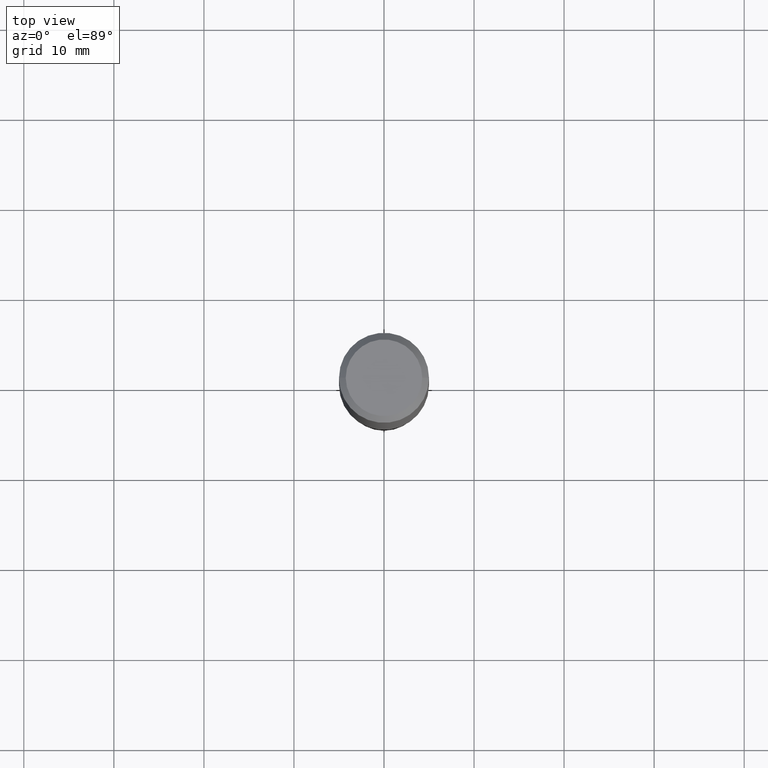
[diagram: clean part render]
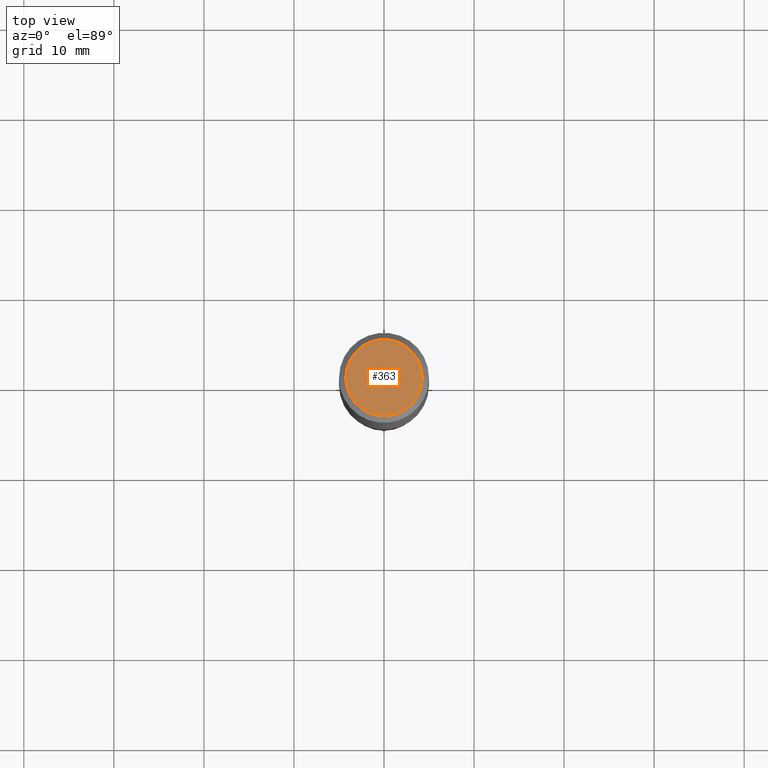
[diagram: same view with one face highlighted and labeled with its STEP entity id]
A machine part, top view. The second image highlights one B-rep face of the part: STEP entity #363.
In plain terms, the highlighted planar face has unit normal (0, -0, -1).
Its self-contained STEP definition (entity closure, byte-faithful):
#16 = CARTESIAN_POINT ( 'NONE',  ( -1.001697619218021790E-46, 1.430158722866389718E-32, 4.096137381448108366E-18 ) ) ;
#56 = CARTESIAN_POINT ( 'NONE',  ( 0.1673224999999999851, -1.300749711163072594E-15, 4.096137381456741925E-18 ) ) ;
#67 = DIRECTION ( 'NONE',  ( 2.438088387897960049E-29, -3.491481338843145188E-15, -1.000000000000000000 ) ) ;
#75 = DIRECTION ( 'NONE',  ( -2.445468806185136597E-29, 3.491481338843145583E-15, 1.000000000000000000 ) ) ;
#99 = DIRECTION ( 'NONE',  ( 1.000000000000000000, -6.982962677686267499E-15, 4.876294436782262290E-29 ) ) ;
#123 = EDGE_LOOP ( 'NONE', ( #320, #154 ) ) ;
#136 = DIRECTION ( 'NONE',  ( 1.000000000000000000, -6.982962677686267499E-15, 4.876294436782262290E-29 ) ) ;
#140 = CARTESIAN_POINT ( 'NONE',  ( -5.008488096090108951E-47, 7.150793614331948590E-33, 2.048068690724054183E-18 ) ) ;
#154 = ORIENTED_EDGE ( 'NONE', *, *, #260, .T. ) ;
#180 = FACE_OUTER_BOUND ( 'NONE', #123, .T. ) ;
#181 = VERTEX_POINT ( 'NONE', #187 ) ;
#187 = CARTESIAN_POINT ( 'NONE',  ( -0.1673224999999999851, 1.219954130253505460E-15, 4.096137381439757534E-18 ) ) ;
#203 = CIRCLE ( 'NONE', #435, 0.1673224999999999851 ) ;
#210 = DIRECTION ( 'NONE',  ( -1.000000000000000000, 6.982962677686265922E-15, -4.876176775795935793E-29 ) ) ;
#213 = CARTESIAN_POINT ( 'NONE',  ( -1.001697619218021790E-46, 1.430158722866389718E-32, 4.096137381448108366E-18 ) ) ;
#238 = AXIS2_PLACEMENT_3D ( 'NONE', #140, #67, #210 ) ;
#243 = EDGE_CURVE ( 'NONE', #181, #280, #313, .T. ) ;
#260 = EDGE_CURVE ( 'NONE', #280, #181, #203, .T. ) ;
#280 = VERTEX_POINT ( 'NONE', #56 ) ;
#313 = CIRCLE ( 'NONE', #381, 0.1673224999999999851 ) ;
#320 = ORIENTED_EDGE ( 'NONE', *, *, #243, .T. ) ;
#348 = DIRECTION ( 'NONE',  ( -2.445468806185136597E-29, 3.491481338843145583E-15, 1.000000000000000000 ) ) ;
#363 = ADVANCED_FACE ( 'NONE', ( #180 ), #394, .F. ) ;
#381 = AXIS2_PLACEMENT_3D ( 'NONE', #16, #348, #99 ) ;
#394 = PLANE ( 'NONE',  #238 ) ;
#435 = AXIS2_PLACEMENT_3D ( 'NONE', #213, #75, #136 ) ;